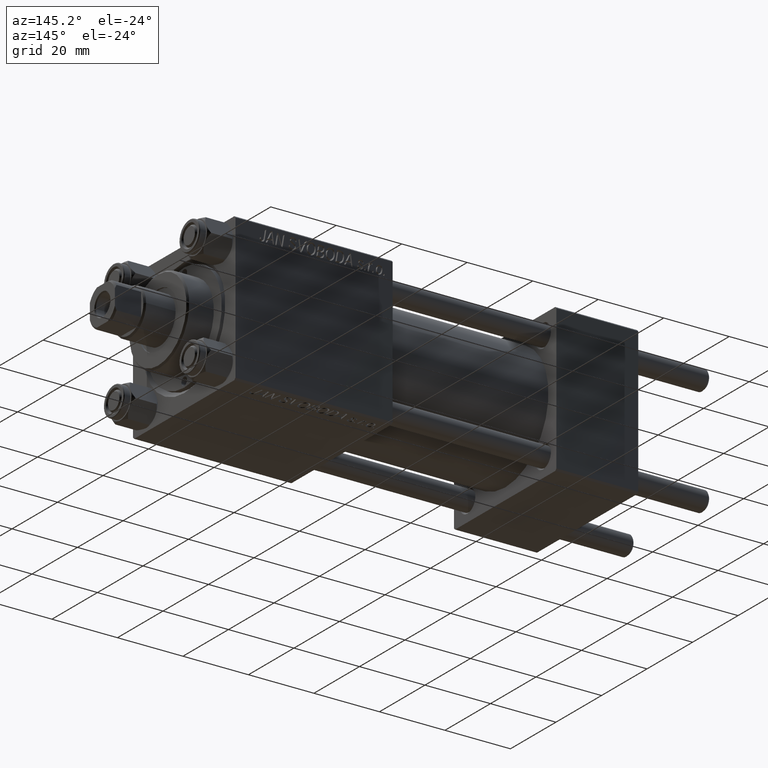
[diagram: clean part render]
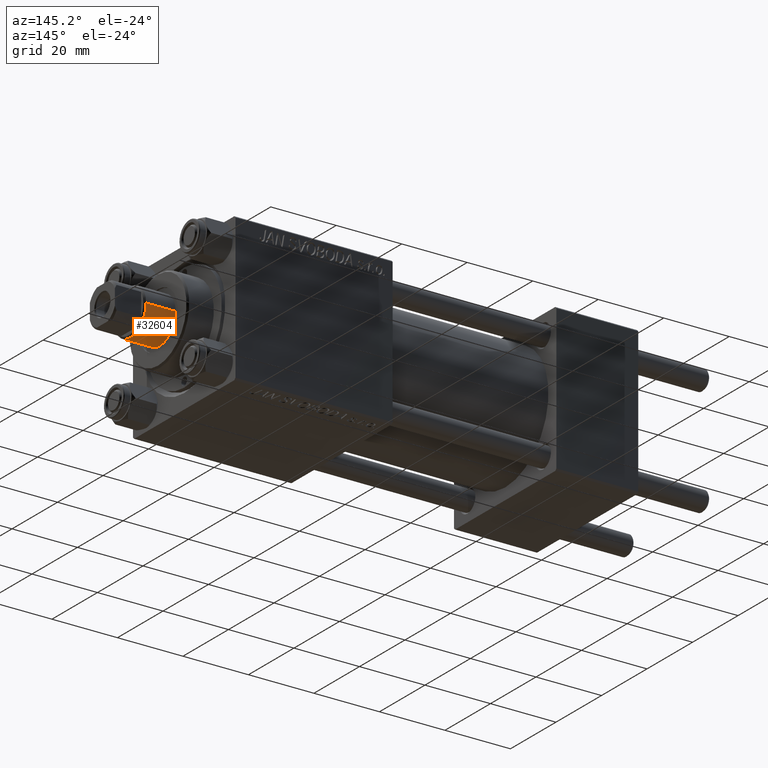
[diagram: same view with one face highlighted and labeled with its STEP entity id]
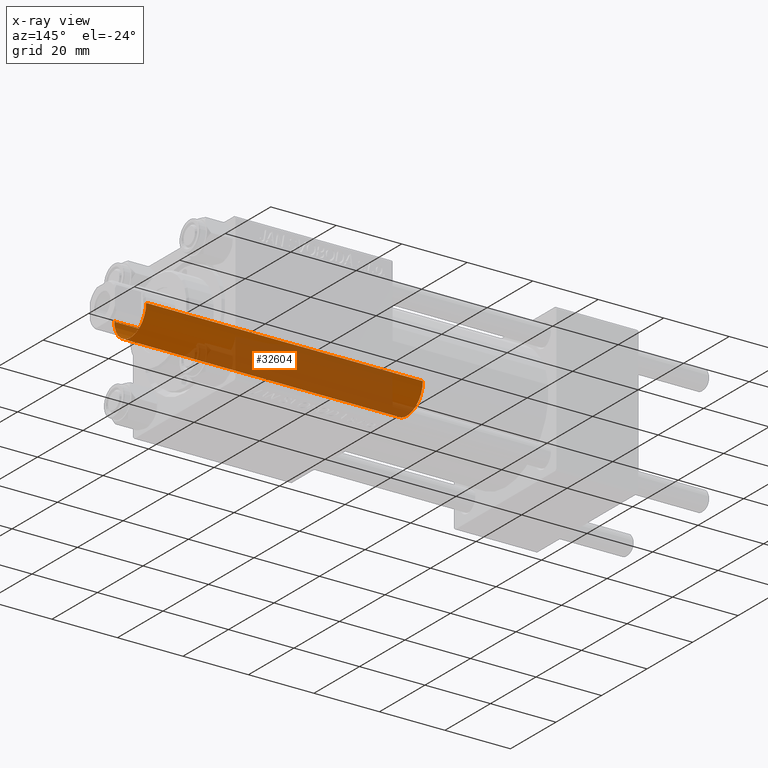
[diagram: x-ray of the same camera — body ghosted, the highlighted face saturated]
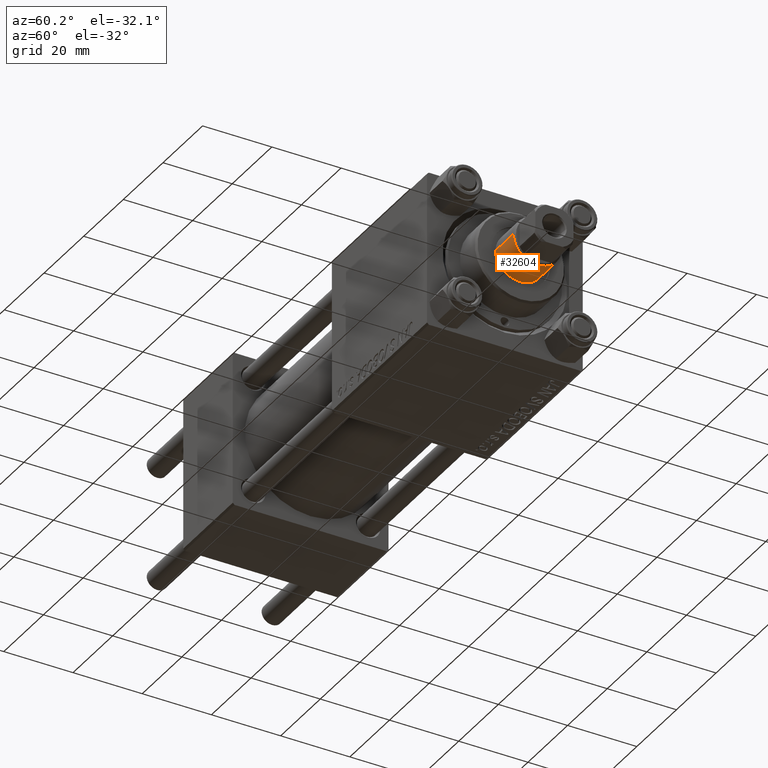
[diagram: same view with one face highlighted and labeled with its STEP entity id]
A machine part, auxiliary view. The second image highlights one B-rep face of the part: STEP entity #32604.
The next image is the same camera in x-ray: the body ghosted, the highlighted face saturated — about 62% of this face is hidden behind the body in this view.
A second angle (auxiliary view) of the same face is appended — the face is thin or edge-on in the first view.
In plain terms, the highlighted cylindrical surface (edge-blend (fillet) strip) has radius 7 mm, axis along (-1, 0, 0).
Its self-contained STEP definition (entity closure, byte-faithful):
#585 = DIRECTION ( 'NONE',  ( -0.000000000000000000, -0.000000000000000000, -1.000000000000000000 ) ) ;
#3390 = LINE ( 'NONE', #7180, #23518 ) ;
#4110 = ORIENTED_EDGE ( 'NONE', *, *, #27086, .T. ) ;
#5164 = EDGE_CURVE ( 'NONE', #47697, #16465, #39402, .T. ) ;
#7079 = CARTESIAN_POINT ( 'NONE',  ( -7.000000000000000000, 0.000000000000000000, 115.0000000000000000 ) ) ;
#7180 = CARTESIAN_POINT ( 'NONE',  ( 7.000000000000000000, 8.572527594031473190E-16, 115.0000000000000000 ) ) ;
#7256 = VECTOR ( 'NONE', #14920, 1000.000000000000000 ) ;
#8423 = VERTEX_POINT ( 'NONE', #10602 ) ;
#10602 = CARTESIAN_POINT ( 'NONE',  ( -7.000000000000000000, 0.000000000000000000, 114.4999999999999858 ) ) ;
#11879 = DIRECTION ( 'NONE',  ( 0.000000000000000000, 0.000000000000000000, 1.000000000000000000 ) ) ;
#12039 = AXIS2_PLACEMENT_3D ( 'NONE', #44469, #21462, #36897 ) ;
#12406 = EDGE_CURVE ( 'NONE', #24676, #47697, #3390, .T. ) ;
#12463 = ORIENTED_EDGE ( 'NONE', *, *, #14011, .F. ) ;
#13316 = CARTESIAN_POINT ( 'NONE',  ( 0.000000000000000000, 0.000000000000000000, 115.0000000000000000 ) ) ;
#13564 = DIRECTION ( 'NONE',  ( -0.000000000000000000, -0.000000000000000000, -1.000000000000000000 ) ) ;
#13676 = CIRCLE ( 'NONE', #12039, 7.000000000000000000 ) ;
#13939 = CARTESIAN_POINT ( 'NONE',  ( 7.000000000000000000, 8.572527594031473190E-16, 114.4999999999999858 ) ) ;
#14011 = EDGE_CURVE ( 'NONE', #8423, #16465, #20131, .T. ) ;
#14703 = DIRECTION ( 'NONE',  ( 1.000000000000000000, 0.000000000000000000, 0.000000000000000000 ) ) ;
#14920 = DIRECTION ( 'NONE',  ( -0.000000000000000000, -0.000000000000000000, -1.000000000000000000 ) ) ;
#16465 = VERTEX_POINT ( 'NONE', #34618 ) ;
#18386 = AXIS2_PLACEMENT_3D ( 'NONE', #42514, #11879, #14703 ) ;
#19332 = ORIENTED_EDGE ( 'NONE', *, *, #5164, .T. ) ;
#20131 = LINE ( 'NONE', #7079, #7256 ) ;
#21105 = AXIS2_PLACEMENT_3D ( 'NONE', #13316, #13564, #45460 ) ;
#21462 = DIRECTION ( 'NONE',  ( 0.000000000000000000, 0.000000000000000000, -1.000000000000000000 ) ) ;
#23518 = VECTOR ( 'NONE', #585, 1000.000000000000000 ) ;
#24676 = VERTEX_POINT ( 'NONE', #13939 ) ;
#26705 = CARTESIAN_POINT ( 'NONE',  ( 7.000000000000000000, 8.572527594031473190E-16, 30.00000000000000000 ) ) ;
#27086 = EDGE_CURVE ( 'NONE', #8423, #24676, #13676, .T. ) ;
#32566 = FACE_OUTER_BOUND ( 'NONE', #37826, .T. ) ;
#32604 = ADVANCED_FACE ( 'NONE', ( #32566 ), #47990, .T. ) ;
#34618 = CARTESIAN_POINT ( 'NONE',  ( -7.000000000000000000, 0.000000000000000000, 30.00000000000000000 ) ) ;
#36897 = DIRECTION ( 'NONE',  ( 1.000000000000000000, 0.000000000000000000, 0.000000000000000000 ) ) ;
#37826 = EDGE_LOOP ( 'NONE', ( #4110, #45283, #19332, #12463 ) ) ;
#39402 = CIRCLE ( 'NONE', #18386, 7.000000000000000000 ) ;
#42514 = CARTESIAN_POINT ( 'NONE',  ( 0.000000000000000000, 0.000000000000000000, 30.00000000000000000 ) ) ;
#44469 = CARTESIAN_POINT ( 'NONE',  ( 0.000000000000000000, 0.000000000000000000, 114.4999999999999858 ) ) ;
#45283 = ORIENTED_EDGE ( 'NONE', *, *, #12406, .T. ) ;
#45460 = DIRECTION ( 'NONE',  ( -1.000000000000000000, 0.000000000000000000, 0.000000000000000000 ) ) ;
#47697 = VERTEX_POINT ( 'NONE', #26705 ) ;
#47990 = CYLINDRICAL_SURFACE ( 'NONE', #21105, 7.000000000000000000 ) ;